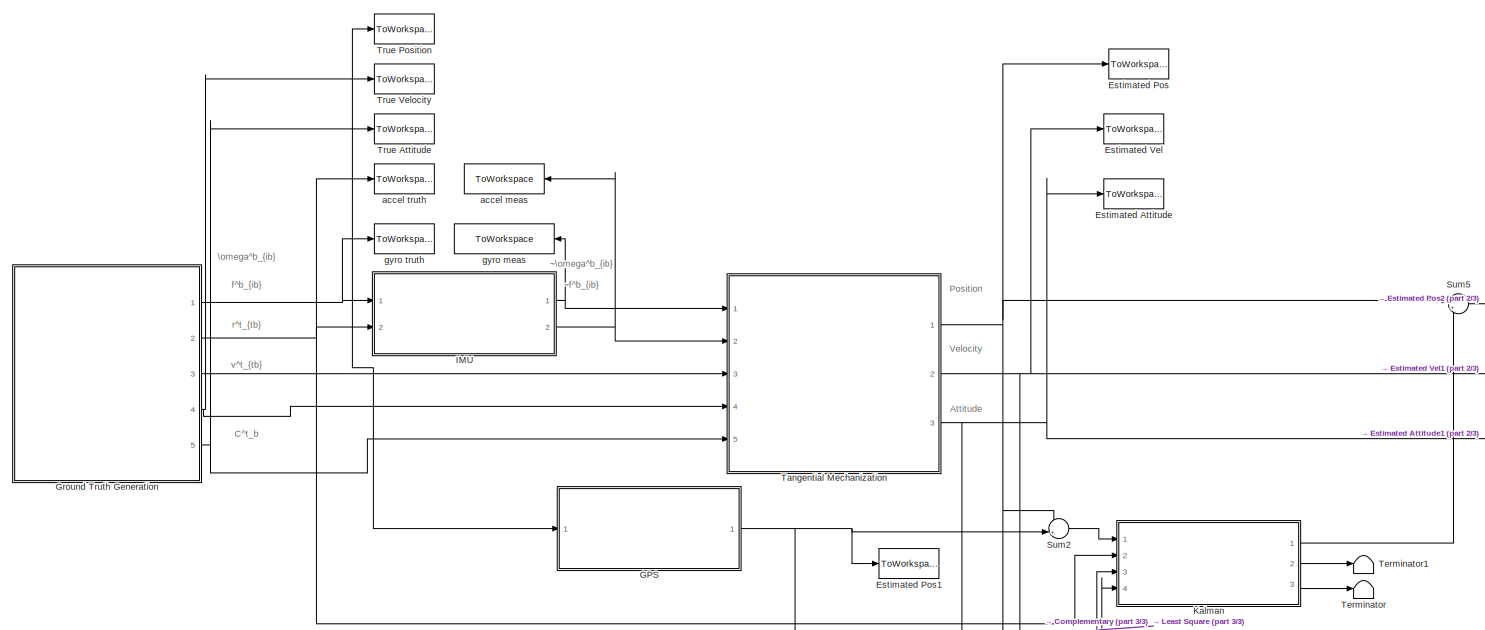
[diagram: root canvas - part 1/3, full width, top band]
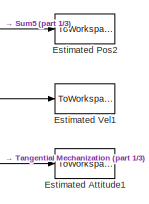
[diagram: root canvas - part 2/3, middle right region]
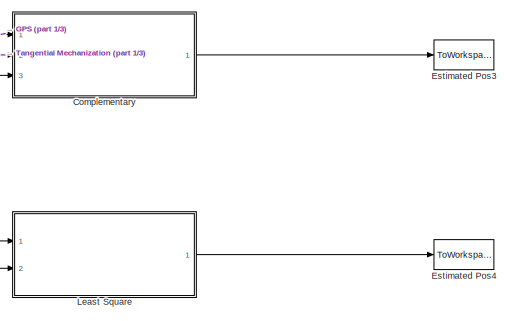
[diagram: root canvas - part 3/3, bottom right region]
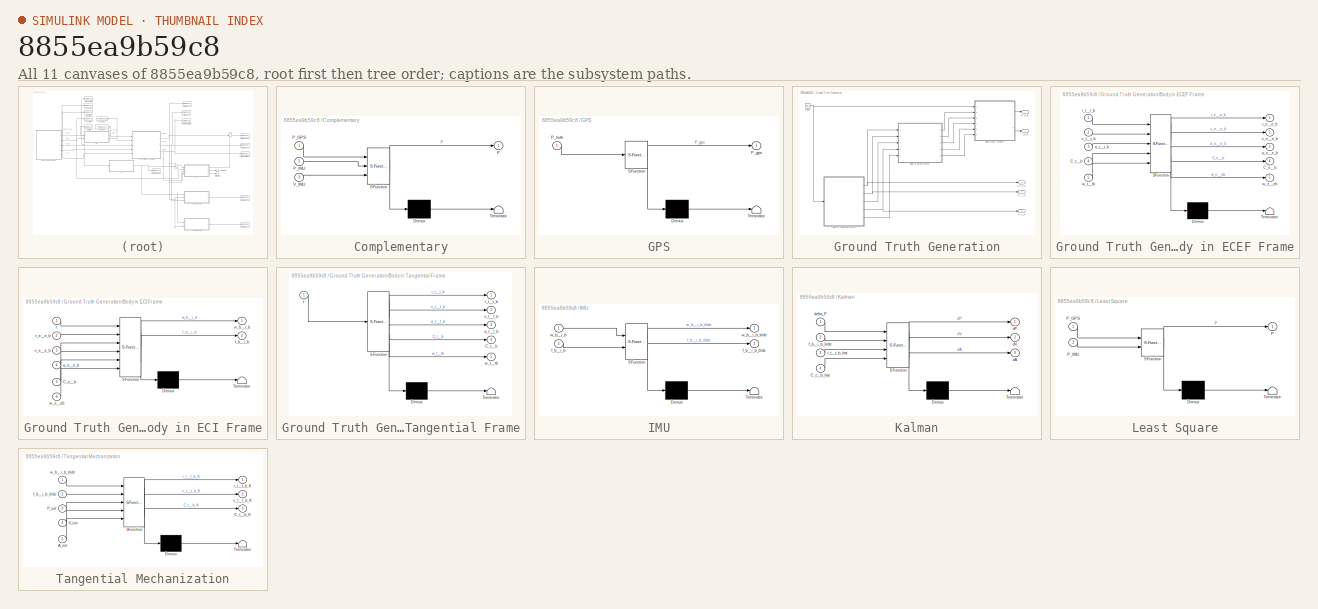
[diagram: thumbnail index - all 11 canvases of the model, root first then tree order]
MODEL slx_8855ea9b59c8
KIND model
CONFIG AbsTol = auto
CONFIG EnableMultiTasking = on
CONFIG FixedStep = constants.dt
CONFIG MaxStep = auto
CONFIG MinStep = auto
CONFIG RelTol = 1e-3
CONFIG SampleTimeConstraint = Unconstrained
CONFIG Solver = ode1
CONFIG SolverName = ode1
CONFIG StartTime = 0.0
CONFIG StopTime = constants.t_end
BLOCK [SubSystem] Complementary
  ErrorFcn = Stateflow.Translate.translate
  PermitHierarchicalResolution = ExplicitOnly
  Ports = [3, 1]
  RequestExecContextInheritance = off
  SFBlockType = MATLAB Function
  TreatAsAtomicUnit = on
BLOCK [Demux] Complementary/ Demux 
  Outputs = 1
  Ports = [1, 1]
BLOCK [S-Function] Complementary/ SFunction 
  EnableBusSupport = on
  FunctionName = sf_sfun
  Parameters = constants
  PortCounts = [3 2]
  Ports = [3, 2]
  SFcnIsStateOwnerBlock = off
  SFunctionDeploymentMode = off
  Tag = Stateflow S-Function Main_Sim 2
BLOCK [Terminator] Complementary/ Terminator 
BLOCK [Outport] Complementary/P
  IconDisplay = Port number
BLOCK [Inport] Complementary/P_GPS
  IconDisplay = Port number
BLOCK [Inport] Complementary/P_IMU
  IconDisplay = Port number
  Port = 2
BLOCK [Inport] Complementary/V_IMU
  IconDisplay = Port number
  Port = 3
BLOCK [ToWorkspace] Estimated Attitude
  FixptAsFi = on
  MaxDataPoints = inf
  Ports = [1]
  SampleTime = -1
  Save2DSignal = 3-D array (concatenate along third dimension)
  VariableName = A_imu
BLOCK [ToWorkspace] Estimated Attitude1
  FixptAsFi = on
  MaxDataPoints = inf
  Ports = [1]
  SampleTime = -1
  Save2DSignal = 3-D array (concatenate along third dimension)
  VariableName = A_KF
BLOCK [ToWorkspace] Estimated Pos
  FixptAsFi = on
  MaxDataPoints = inf
  Ports = [1]
  SampleTime = -1
  Save2DSignal = 3-D array (concatenate along third dimension)
  VariableName = P_imu
BLOCK [ToWorkspace] Estimated Pos1
  FixptAsFi = on
  MaxDataPoints = inf
  Ports = [1]
  SampleTime = -1
  Save2DSignal = 3-D array (concatenate along third dimension)
  VariableName = P_gps
BLOCK [ToWorkspace] Estimated Pos2
  FixptAsFi = on
  MaxDataPoints = inf
  Ports = [1]
  SampleTime = -1
  Save2DSignal = 3-D array (concatenate along third dimension)
  VariableName = P_KF
BLOCK [ToWorkspace] Estimated Pos3
  FixptAsFi = on
  MaxDataPoints = inf
  Ports = [1]
  SampleTime = -1
  Save2DSignal = 3-D array (concatenate along third dimension)
  VariableName = P_COMP
BLOCK [ToWorkspace] Estimated Pos4
  FixptAsFi = on
  MaxDataPoints = inf
  Ports = [1]
  SampleTime = -1
  Save2DSignal = 3-D array (concatenate along third dimension)
  VariableName = P_LSR
BLOCK [ToWorkspace] Estimated Vel
  FixptAsFi = on
  MaxDataPoints = inf
  Ports = [1]
  SampleTime = -1
  Save2DSignal = 3-D array (concatenate along third dimension)
  VariableName = V_imu
BLOCK [ToWorkspace] Estimated Vel1
  FixptAsFi = on
  MaxDataPoints = inf
  Ports = [1]
  SampleTime = -1
  Save2DSignal = 3-D array (concatenate along third dimension)
  VariableName = V_KF
BLOCK [SubSystem] GPS
  ErrorFcn = Stateflow.Translate.translate
  PermitHierarchicalResolution = ExplicitOnly
  Ports = [1, 1]
  RequestExecContextInheritance = off
  SFBlockType = MATLAB Function
  TreatAsAtomicUnit = on
BLOCK [Demux] GPS/ Demux 
  Outputs = 1
  Ports = [1, 1]
BLOCK [S-Function] GPS/ SFunction 
  EnableBusSupport = on
  FunctionName = sf_sfun
  Parameters = constants
  PortCounts = [1 2]
  Ports = [1, 2]
  SFcnIsStateOwnerBlock = off
  SFunctionDeploymentMode = off
  Tag = Stateflow S-Function Main_Sim 6
BLOCK [Terminator] GPS/ Terminator 
BLOCK [Outport] GPS/P_gps
  IconDisplay = Port number
BLOCK [Inport] GPS/P_truth
  IconDisplay = Port number
BLOCK [SubSystem] Ground Truth Generation
  Ports = [0, 5]
  RequestExecContextInheritance = off
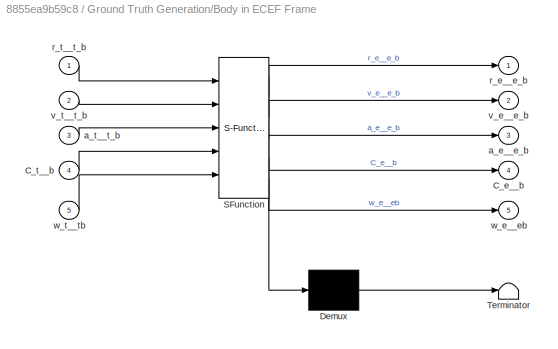
BLOCK [SubSystem] Ground Truth Generation/Body in ECEF Frame
  ErrorFcn = Stateflow.Translate.translate
  PermitHierarchicalResolution = ExplicitOnly
  Ports = [5, 5]
  RequestExecContextInheritance = off
  SFBlockType = MATLAB Function
  TreatAsAtomicUnit = on
BLOCK [Demux] Ground Truth Generation/Body in ECEF Frame/ Demux 
  Outputs = 1
  Ports = [1, 1]
BLOCK [S-Function] Ground Truth Generation/Body in ECEF Frame/ SFunction 
  EnableBusSupport = on
  FunctionName = sf_sfun
  Parameters = constants
  PortCounts = [5 6]
  Ports = [5, 6]
  SFcnIsStateOwnerBlock = off
  SFunctionDeploymentMode = off
  Tag = Stateflow S-Function Main_Sim 1
BLOCK [Terminator] Ground Truth Generation/Body in ECEF Frame/ Terminator 
BLOCK [Outport] Ground Truth Generation/Body in ECEF Frame/C_e__b
  IconDisplay = Port number
  Port = 4
BLOCK [Inport] Ground Truth Generation/Body in ECEF Frame/C_t__b
  IconDisplay = Port number
  Port = 4
BLOCK [Outport] Ground Truth Generation/Body in ECEF Frame/a_e__e_b
  IconDisplay = Port number
  Port = 3
BLOCK [Inport] Ground Truth Generation/Body in ECEF Frame/a_t__t_b
  IconDisplay = Port number
  Port = 3
BLOCK [Outport] Ground Truth Generation/Body in ECEF Frame/r_e__e_b
  IconDisplay = Port number
BLOCK [Inport] Ground Truth Generation/Body in ECEF Frame/r_t__t_b
  IconDisplay = Port number
BLOCK [Outport] Ground Truth Generation/Body in ECEF Frame/v_e__e_b
  IconDisplay = Port number
  Port = 2
BLOCK [Inport] Ground Truth Generation/Body in ECEF Frame/v_t__t_b
  IconDisplay = Port number
  Port = 2
BLOCK [Outport] Ground Truth Generation/Body in ECEF Frame/w_e__eb
  IconDisplay = Port number
  Port = 5
BLOCK [Inport] Ground Truth Generation/Body in ECEF Frame/w_t__tb
  IconDisplay = Port number
  Port = 5
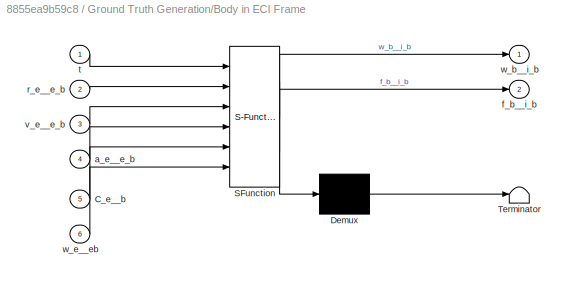
BLOCK [SubSystem] Ground Truth Generation/Body in ECI Frame
  ErrorFcn = Stateflow.Translate.translate
  PermitHierarchicalResolution = ExplicitOnly
  Ports = [6, 2]
  RequestExecContextInheritance = off
  SFBlockType = MATLAB Function
  TreatAsAtomicUnit = on
BLOCK [Demux] Ground Truth Generation/Body in ECI Frame/ Demux 
  Outputs = 1
  Ports = [1, 1]
BLOCK [S-Function] Ground Truth Generation/Body in ECI Frame/ SFunction 
  EnableBusSupport = on
  FunctionName = sf_sfun
  Parameters = constants
  PortCounts = [6 3]
  Ports = [6, 3]
  SFcnIsStateOwnerBlock = off
  SFunctionDeploymentMode = off
  Tag = Stateflow S-Function Main_Sim 3
BLOCK [Terminator] Ground Truth Generation/Body in ECI Frame/ Terminator 
BLOCK [Inport] Ground Truth Generation/Body in ECI Frame/C_e__b
  IconDisplay = Port number
  Port = 5
BLOCK [Inport] Ground Truth Generation/Body in ECI Frame/a_e__e_b
  IconDisplay = Port number
  Port = 4
BLOCK [Outport] Ground Truth Generation/Body in ECI Frame/f_b__i_b
  IconDisplay = Port number
  Port = 2
BLOCK [Inport] Ground Truth Generation/Body in ECI Frame/r_e__e_b
  IconDisplay = Port number
  Port = 2
BLOCK [Inport] Ground Truth Generation/Body in ECI Frame/t
  IconDisplay = Port number
BLOCK [Inport] Ground Truth Generation/Body in ECI Frame/v_e__e_b
  IconDisplay = Port number
  Port = 3
BLOCK [Outport] Ground Truth Generation/Body in ECI Frame/w_b__i_b
  IconDisplay = Port number
BLOCK [Inport] Ground Truth Generation/Body in ECI Frame/w_e__eb
  IconDisplay = Port number
  Port = 6
BLOCK [SubSystem] Ground Truth Generation/Body in Tangential Frame
  ErrorFcn = Stateflow.Translate.translate
  PermitHierarchicalResolution = ExplicitOnly
  Ports = [1, 5]
  RequestExecContextInheritance = off
  SFBlockType = MATLAB Function
  TreatAsAtomicUnit = on
BLOCK [Demux] Ground Truth Generation/Body in Tangential Frame/ Demux 
  Outputs = 1
  Ports = [1, 1]
BLOCK [S-Function] Ground Truth Generation/Body in Tangential Frame/ SFunction 
  EnableBusSupport = on
  FunctionName = sf_sfun
  Parameters = constants
  PortCounts = [1 6]
  Ports = [1, 6]
  SFcnIsStateOwnerBlock = off
  SFunctionDeploymentMode = off
  Tag = Stateflow S-Function Main_Sim 7
BLOCK [Terminator] Ground Truth Generation/Body in Tangential Frame/ Terminator 
BLOCK [Outport] Ground Truth Generation/Body in Tangential Frame/C_t__b
  IconDisplay = Port number
  Port = 4
BLOCK [Outport] Ground Truth Generation/Body in Tangential Frame/a_t__t_b
  IconDisplay = Port number
  Port = 3
BLOCK [Outport] Ground Truth Generation/Body in Tangential Frame/r_t__t_b
  IconDisplay = Port number
BLOCK [Inport] Ground Truth Generation/Body in Tangential Frame/t
  IconDisplay = Port number
BLOCK [Outport] Ground Truth Generation/Body in Tangential Frame/v_t__t_b
  IconDisplay = Port number
  Port = 2
BLOCK [Outport] Ground Truth Generation/Body in Tangential Frame/w_t__tb
  IconDisplay = Port number
  Port = 5
BLOCK [Outport] Ground Truth Generation/C_t__b
  IconDisplay = Port number
  Port = 5
BLOCK [Clock] Ground Truth Generation/Clock
BLOCK [Outport] Ground Truth Generation/f_b__ib
  IconDisplay = Port number
  Port = 2
BLOCK [Outport] Ground Truth Generation/r_t__t_b
  IconDisplay = Port number
  Port = 3
BLOCK [Outport] Ground Truth Generation/v_t__t_b
  IconDisplay = Port number
  Port = 4
BLOCK [Outport] Ground Truth Generation/w_b__ib
  IconDisplay = Port number
BLOCK [SubSystem] IMU
  ErrorFcn = Stateflow.Translate.translate
  PermitHierarchicalResolution = ExplicitOnly
  Ports = [2, 2]
  RequestExecContextInheritance = off
  SFBlockType = MATLAB Function
  TreatAsAtomicUnit = on
BLOCK [Demux] IMU/ Demux 
  Outputs = 1
  Ports = [1, 1]
BLOCK [S-Function] IMU/ SFunction 
  EnableBusSupport = on
  FunctionName = sf_sfun
  Parameters = constants
  PortCounts = [2 3]
  Ports = [2, 3]
  SFcnIsStateOwnerBlock = off
  SFunctionDeploymentMode = off
  Tag = Stateflow S-Function Main_Sim 4
BLOCK [Terminator] IMU/ Terminator 
BLOCK [Inport] IMU/f_b__i_b
  IconDisplay = Port number
  Port = 2
BLOCK [Outport] IMU/f_b__i_b_tilde
  IconDisplay = Port number
  Port = 2
BLOCK [Inport] IMU/w_b__i_b
  IconDisplay = Port number
BLOCK [Outport] IMU/w_b__i_b_tilde
  IconDisplay = Port number
BLOCK [SubSystem] Kalman
  ErrorFcn = Stateflow.Translate.translate
  PermitHierarchicalResolution = ExplicitOnly
  Ports = [4, 3]
  RequestExecContextInheritance = off
  SFBlockType = MATLAB Function
  TreatAsAtomicUnit = on
BLOCK [Demux] Kalman/ Demux 
  Outputs = 1
  Ports = [1, 1]
BLOCK [S-Function] Kalman/ SFunction 
  EnableBusSupport = on
  FunctionName = sf_sfun
  Parameters = constants
  PortCounts = [4 4]
  Ports = [4, 4]
  SFcnIsStateOwnerBlock = off
  SFunctionDeploymentMode = off
  Tag = Stateflow S-Function Main_Sim 8
BLOCK [Terminator] Kalman/ Terminator 
BLOCK [Inport] Kalman/C_t__b_hat
  IconDisplay = Port number
  Port = 4
BLOCK [Outport] Kalman/dA
  IconDisplay = Port number
  Port = 3
  VectorParamsAs1DForOutWhenUnconnected = on
BLOCK [Outport] Kalman/dP
  IconDisplay = Port number
BLOCK [Outport] Kalman/dV
  IconDisplay = Port number
  Port = 2
  VectorParamsAs1DForOutWhenUnconnected = on
BLOCK [Inport] Kalman/delta_P
  IconDisplay = Port number
BLOCK [Inport] Kalman/f_b__i_b_tilde
  IconDisplay = Port number
  Port = 2
BLOCK [Inport] Kalman/r_t__t_b_hat
  IconDisplay = Port number
  Port = 3
BLOCK [SubSystem] Least Square
  ErrorFcn = Stateflow.Translate.translate
  PermitHierarchicalResolution = ExplicitOnly
  Ports = [2, 1]
  RequestExecContextInheritance = off
  SFBlockType = MATLAB Function
  TreatAsAtomicUnit = on
BLOCK [Demux] Least Square/ Demux 
  Outputs = 1
  Ports = [1, 1]
BLOCK [S-Function] Least Square/ SFunction 
  EnableBusSupport = on
  FunctionName = sf_sfun
  Parameters = constants
  PortCounts = [2 2]
  Ports = [2, 2]
  SFcnIsStateOwnerBlock = off
  SFunctionDeploymentMode = off
  Tag = Stateflow S-Function Main_Sim 9
BLOCK [Terminator] Least Square/ Terminator 
BLOCK [Outport] Least Square/P
  IconDisplay = Port number
BLOCK [Inport] Least Square/P_GPS
  IconDisplay = Port number
BLOCK [Inport] Least Square/P_IMU
  IconDisplay = Port number
  Port = 2
BLOCK [Sum] Sum2
  IconShape = round
  InputSameDT = off
  Inputs = -+|
  OutDataTypeStr = Inherit: Inherit via internal rule
  Ports = [2, 1]
  SaturateOnIntegerOverflow = off
BLOCK [Sum] Sum5
  IconShape = round
  InputSameDT = off
  Inputs = |++
  OutDataTypeStr = Inherit: Inherit via internal rule
  Ports = [2, 1]
  SaturateOnIntegerOverflow = off
BLOCK [SubSystem] Tangential Mechanization
  ErrorFcn = Stateflow.Translate.translate
  PermitHierarchicalResolution = ExplicitOnly
  Ports = [5, 3]
  RequestExecContextInheritance = off
  SFBlockType = MATLAB Function
  TreatAsAtomicUnit = on
BLOCK [Demux] Tangential Mechanization/ Demux 
  Outputs = 1
  Ports = [1, 1]
BLOCK [S-Function] Tangential Mechanization/ SFunction 
  EnableBusSupport = on
  FunctionName = sf_sfun
  Parameters = constants
  PortCounts = [5 4]
  Ports = [5, 4]
  SFcnIsStateOwnerBlock = off
  SFunctionDeploymentMode = off
  Tag = Stateflow S-Function Main_Sim 5
BLOCK [Terminator] Tangential Mechanization/ Terminator 
BLOCK [Inport] Tangential Mechanization/A_init
  IconDisplay = Port number
  Port = 5
BLOCK [Outport] Tangential Mechanization/C_t__b_K
  IconDisplay = Port number
  Port = 3
BLOCK [Inport] Tangential Mechanization/P_init
  IconDisplay = Port number
  Port = 3
BLOCK [Inport] Tangential Mechanization/V_init
  IconDisplay = Port number
  Port = 4
BLOCK [Inport] Tangential Mechanization/f_b__i_b_tilde
  IconDisplay = Port number
  Port = 2
BLOCK [Outport] Tangential Mechanization/r_t__t_b_K
  IconDisplay = Port number
BLOCK [Outport] Tangential Mechanization/v_t__t_b_K
  IconDisplay = Port number
  Port = 2
BLOCK [Inport] Tangential Mechanization/w_b__i_b_tilde
  IconDisplay = Port number
BLOCK [Terminator] Terminator
BLOCK [Terminator] Terminator1
BLOCK [ToWorkspace] True Attitude
  FixptAsFi = on
  MaxDataPoints = inf
  Ports = [1]
  SampleTime = -1
  Save2DSignal = 3-D array (concatenate along third dimension)
  VariableName = A_truth
BLOCK [ToWorkspace] True Position
  FixptAsFi = on
  MaxDataPoints = inf
  Ports = [1]
  SampleTime = -1
  Save2DSignal = 3-D array (concatenate along third dimension)
  VariableName = P_truth
BLOCK [ToWorkspace] True Velocity
  FixptAsFi = on
  MaxDataPoints = inf
  Ports = [1]
  SampleTime = -1
  Save2DSignal = 3-D array (concatenate along third dimension)
  VariableName = V_truth
BLOCK [ToWorkspace] accel meas
  FixptAsFi = on
  MaxDataPoints = inf
  Ports = [1]
  SampleTime = -1
  Save2DSignal = 3-D array (concatenate along third dimension)
  VariableName = f_b__i_b_tilde
BLOCK [ToWorkspace] accel truth
  FixptAsFi = on
  MaxDataPoints = inf
  Ports = [1]
  SampleTime = -1
  Save2DSignal = 3-D array (concatenate along third dimension)
  VariableName = f_b__i_b
BLOCK [ToWorkspace] gyro meas
  FixptAsFi = on
  MaxDataPoints = inf
  Ports = [1]
  SampleTime = -1
  Save2DSignal = 3-D array (concatenate along third dimension)
  VariableName = w_b__i_b_tilde
BLOCK [ToWorkspace] gyro truth
  FixptAsFi = on
  MaxDataPoints = inf
  Ports = [1]
  SampleTime = -1
  Save2DSignal = 3-D array (concatenate along third dimension)
  VariableName = w_b__i_b
ANNOTATION (root): Attitude
ANNOTATION (root): C^t_b
ANNOTATION (root): Position
ANNOTATION (root): Velocity
ANNOTATION (root): \omega^b_{ib}
ANNOTATION (root): f^b_{ib}
ANNOTATION (root): r^t_{tb}
ANNOTATION (root): v^t_{tb}
ANNOTATION (root): ~\omega^b_{ib}
ANNOTATION (root): ~f^b_{ib}
LINE Complementary:1 -> Estimated Pos3:1
NET GPS:1 -> Complementary:1, Estimated Pos1:1, Least Square:1, Sum2:2
LINE Ground Truth Generation/Body in ECEF Frame:1 -> Ground Truth Generation/Body in ECI Frame:2
LINE Ground Truth Generation/Body in ECEF Frame:2 -> Ground Truth Generation/Body in ECI Frame:3
LINE Ground Truth Generation/Body in ECEF Frame:3 -> Ground Truth Generation/Body in ECI Frame:4
LINE Ground Truth Generation/Body in ECEF Frame:4 -> Ground Truth Generation/Body in ECI Frame:5
LINE Ground Truth Generation/Body in ECEF Frame:5 -> Ground Truth Generation/Body in ECI Frame:6
LINE Ground Truth Generation/Body in ECI Frame:1 -> Ground Truth Generation/w_b__ib:1
LINE Ground Truth Generation/Body in ECI Frame:2 -> Ground Truth Generation/f_b__ib:1
NET Ground Truth Generation/Body in Tangential Frame:1 -> Ground Truth Generation/Body in ECEF Frame:1, Ground Truth Generation/r_t__t_b:1
NET Ground Truth Generation/Body in Tangential Frame:2 -> Ground Truth Generation/Body in ECEF Frame:2, Ground Truth Generation/v_t__t_b:1
LINE Ground Truth Generation/Body in Tangential Frame:3 -> Ground Truth Generation/Body in ECEF Frame:3
NET Ground Truth Generation/Body in Tangential Frame:4 -> Ground Truth Generation/Body in ECEF Frame:4, Ground Truth Generation/C_t__b:1
LINE Ground Truth Generation/Body in Tangential Frame:5 -> Ground Truth Generation/Body in ECEF Frame:5
NET Ground Truth Generation/Clock:1 -> Ground Truth Generation/Body in ECI Frame:1, Ground Truth Generation/Body in Tangential Frame:1
NET Ground Truth Generation:1 -> IMU:1, gyro truth:1
NET Ground Truth Generation:2 -> IMU:2, Kalman:2, accel truth:1
NET Ground Truth Generation:3 -> GPS:1, Tangential Mechanization:3, True Position:1
NET Ground Truth Generation:4 -> Tangential Mechanization:4, True Velocity:1
NET Ground Truth Generation:5 -> Tangential Mechanization:5, True Attitude:1
NET IMU:1 -> Tangential Mechanization:1, gyro meas:1
NET IMU:2 -> Tangential Mechanization:2, accel meas:1
LINE Kalman:1 -> Sum5:2
LINE Kalman:2 -> Terminator1:1
LINE Kalman:3 -> Terminator:1
LINE Least Square:1 -> Estimated Pos4:1
LINE Sum2:1 -> Kalman:1
LINE Sum5:1 -> Estimated Pos2:1
NET Tangential Mechanization:1 -> Complementary:2, Estimated Pos:1, Kalman:3, Least Square:2, Sum2:1, Sum5:1
NET Tangential Mechanization:2 -> Complementary:3, Estimated Vel1:1, Estimated Vel:1
NET Tangential Mechanization:3 -> Estimated Attitude1:1, Estimated Attitude:1, Kalman:4
note: NET lines group one-source signal fan-out (src -> all destinations, sorted); 1:1 wires keep LINE
CHART Ground Truth Generation/Body in ECEF Frame states=1 transitions=1
  STATE_LABEL 'eML_blk_kernel()'
  STATE_LABEL 'SCRIPT:\nfunction [r_e__e_b, v_e__e_b, a_e__e_b, C_e__b, w_e__eb] = Tan_to_ECEF(r_t__t_b, v_t__t_b, a_t__t_b, C_t__b, w_t__tb, constants)\n%#codegen\n%\n% FUNCTION DESCRIPTION:\n%   Propagates quantities from the NAV to BODY coordinate frame\n%\n% INPUTS:\n%   r_t__t_b = Position         of {b} wrt {t} resolved in {t} (m)\n%   v_t__t_b = Velocity         of {b} wrt {t} resolved in {t} (m/s)\n%   a_t__t_b = ...<+1435ch>'
CHART Complementary states=1 transitions=1
  STATE_LABEL 'eML_blk_kernel()'
  STATE_LABEL 'SCRIPT:\nfunction P = Complementary(P_GPS, P_IMU, V_IMU, constants)\n    persistent T\n    % Keep track of the time\n    if isempty(T)\n        T = 0;\n    else\n        T = T + constants.dt;\n    end\n    \n    tau = .2;\n    alpha = tau / (tau+constants.dt);\n    P = alpha*P_GPS + (1-alpha)*P_IMU;\nend     % End of function\n\n'
CHART Ground Truth Generation/Body in ECI Frame states=1 transitions=1
  STATE_LABEL 'eML_blk_kernel()'
  STATE_LABEL 'SCRIPT:\nfunction [w_b__i_b, f_b__i_b] = ECEF_to_ECI(t, r_e__e_b, v_e__e_b, a_e__e_b, C_e__b, w_e__eb, constants)\n%#codegen\n%\n% FUNCTION DESCRIPTION:\n%   Propagates quantities from the NAV to BODY coordinate frame\n%\n% INPUTS:\n%   r_e__e_b = Position         of {b} wrt {e} resolved in {e} (m)\n%   v_e__e_b = Velocity         of {b} wrt {e} resolved in {e} (m/s)\n%   a_e__e_b = Acceleration     of {b} ...<+2130ch>'
CHART IMU states=1 transitions=1
  STATE_LABEL 'eML_blk_kernel()'
  STATE_LABEL 'SCRIPT:\nfunction [w_b__i_b_tilde, f_b__i_b_tilde] = IMU(w_b__i_b, f_b__i_b, constants)\n%#codegen\n% FUNCTION DESCRIPTION:\n%   Simulation of an IMU (ideal error-free case)\n%\n% INPUTS:\n%   w_i__i_b = Angular velocity of {b} wrt {i} resolved in {i} (rad/s)\n%   a_i__i_b = Acceleration     of {b} wrt {i} resolved in {i} (m/s^2)\n%   constants= A structure containing many constant parameters\n%\n% OUTPUTS:\n...<+3132ch>'
CHART Tangential Mechanization states=1 transitions=1
  STATE_LABEL 'eML_blk_kernel()'
  STATE_LABEL 'SCRIPT:\nfunction [r_t__t_b_K, v_t__t_b_K, C_t__b_K] = TAN_mech(w_b__i_b_tilde, f_b__i_b_tilde, P_init, V_init, A_init, constants)\n%#codegen\n% FUNCTION DESCRIPTION:\n%   Implements the low and high-fidelity Tangential Frame Mechanization\n%\n% INPUTS:\n%   w_b__i_b_tilde  = Current Gyro measurements (rad/s)\n%   f_b__i_b_tilde  = Current Accel measurements (m/s^2)\n%   P_init          = True position r_t...<+3608ch>'
CHART GPS states=1 transitions=1
  STATE_LABEL 'eML_blk_kernel()'
  STATE_LABEL 'SCRIPT:\nfunction P_gps  = GPS(P_truth, constants)\n%#codegen\n% FUNCTION DESCRIPTION:\n%   Simulation of an IMU (ideal error-free case)\n%\n% INPUTS:\n%   w_i__i_b = Angular velocity of {b} wrt {i} resolved in {i} (rad/s)\n%   a_i__i_b = Acceleration     of {b} wrt {i} resolved in {i} (m/s^2)\n%   constants= A structure containing many constant parameters\n%\n% OUTPUTS:\n%   w_b__i_b_tilde = Gyro  meas (rad/...<+442ch>'
CHART Ground Truth Generation/Body in Tangential Frame states=1 transitions=1
  STATE_LABEL 'eML_blk_kernel()'
  STATE_LABEL 'SCRIPT:\nfunction [r_t__t_b, v_t__t_b, a_t__t_b, C_t__b, w_t__tb] = Body_in_Tan(t, constants)\n%#codegen\n%\n% FUNCTION DESCRIPTION:\n%   Propagates quantities from the NAV to BODY coordinate frame\n%\n% INPUTS:\n%   t_sec    = Time (sec)\n%   constants= A structure containing various constant parameters\n%\n% OUTPUTS:\n%   r_t__t_b = Position         of {b} wrt {t} resolved in {t} (m)\n%   v_t__t_b = Velocity...<+2807ch>'
CHART Kalman states=1 transitions=1
  STATE_LABEL 'eML_blk_kernel()'
  STATE_LABEL 'SCRIPT:\nfunction [dP, dV, dA] = Kalman(delta_P, f_b__i_b_tilde, r_t__t_b_hat, C_t__b_hat, constants)\nI3 = eye(3);\nO3 = zeros(3);\nsigma_gps = constants.gps.sigma;\ndt         = constants.dt;          % Time step (sec)\nOhm_i__i_e = constants.Ohm_i__i_e;  % Skew symmetric version of w_i__i_e (rad/s)\nC_e__t     = constants.C_e__t;   \t% Attitude of t-frame wrt e-frame (a constant matrix)\nC_t__e     = C_...<+2106ch>'
CHART Least Square states=1 transitions=1
  STATE_LABEL 'eML_blk_kernel()'
  STATE_LABEL 'SCRIPT:\nfunction P = Least_Square(P_GPS, P_IMU , constants)\n    % Basic Least Square filter implementation\n    P = ((P_IMU./constants.accel.sigma_VRW.^2)+(P_GPS./constants.gps.sigma.^2))./((1./constants.accel.sigma_VRW.^2)+(1./constants.gps.sigma.^2));\nend     % End of function\n\n'
